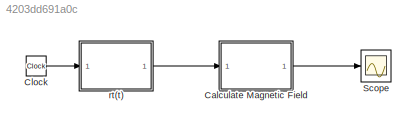
MODEL slx_4203dd691a0c
KIND model
CONFIG AbsTol = auto
CONFIG EnableMultiTasking = off
CONFIG FixedStep = auto
CONFIG MaxStep = auto
CONFIG MinStep = auto
CONFIG RelTol = 1e-3
CONFIG SampleTimeConstraint = Unconstrained
CONFIG SolverName = VariableStepAuto
CONFIG StartTime = 0.0
CONFIG StopTime = 5337.0
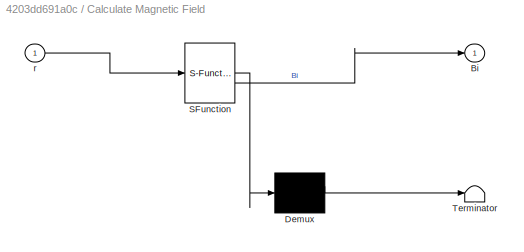
BLOCK [SubSystem] Calculate Magnetic Field
  ErrorFcn = Stateflow.Translate.translate
  LibrarySourceBlock = simulink/User-Defined\nFunctions/MATLAB Function
  PermitHierarchicalResolution = ExplicitOnly
  SFBlockType = MATLAB Function
  TreatAsAtomicUnit = on
BLOCK [Demux] Calculate Magnetic Field/ Demux 
  Outputs = 1
BLOCK [S-Function] Calculate Magnetic Field/ SFunction 
  EnableBusSupport = on
  FunctionName = sf_sfun
  PortCounts = [1 2]
  SFcnIsStateOwnerBlock = off
  SFunctionDeploymentMode = off
  Tag = Stateflow S-Function 1
BLOCK [Terminator] Calculate Magnetic Field/ Terminator 
BLOCK [Outport] Calculate Magnetic Field/Bi
BLOCK [Inport] Calculate Magnetic Field/r
BLOCK [Clock] Clock
BLOCK [Scope] Scope
  Floating = off
  NumInputPorts = 1
  ScopeSpecificationString = Simulink.scopes.TimeScopeBlockCfg('CurrentConfiguration', extmgr.ConfigurationSet(extmgr.Configuration('Core','General UI',true),extmgr.Configuration('Core','Source UI',true),extmgr.Configuration('Sources','WiredSimulink',true),extmgr.Configuration('Visuals','Time Domain',true,'SerializedDisplays',{struct('MinYLimReal','-0.00007','MaxYLimReal','0.00005','YLabelReal','','MinYLimMag','0.00000','MaxY...<+1402ch>
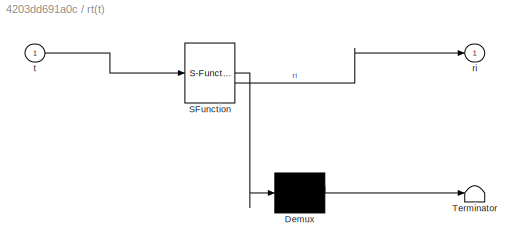
BLOCK [SubSystem] rt(t)
  ErrorFcn = Stateflow.Translate.translate
  LibrarySourceBlock = simulink/User-Defined\nFunctions/MATLAB Function
  PermitHierarchicalResolution = ExplicitOnly
  SFBlockType = MATLAB Function
  TreatAsAtomicUnit = on
BLOCK [Demux] rt(t)/ Demux 
  Outputs = 1
BLOCK [S-Function] rt(t)/ SFunction 
  EnableBusSupport = on
  FunctionName = sf_sfun
  PortCounts = [1 2]
  SFcnIsStateOwnerBlock = off
  SFunctionDeploymentMode = off
  Tag = Stateflow S-Function 2
BLOCK [Terminator] rt(t)/ Terminator 
BLOCK [Outport] rt(t)/ri
BLOCK [Inport] rt(t)/t
LINE Calculate Magnetic Field:1 -> Scope:1
LINE Clock:1 -> rt(t):1
LINE rt(t):1 -> Calculate Magnetic Field:1
CHART rt(t) states=1 transitions=1
  STATE_LABEL 'eML_blk_kernel()'
  STATE_LABEL 'SCRIPT:\nfunction ri = fcn(t)\n\np = 6600;\nmu = 398600;\nw = sqrt(mu / (p^3));\n\nri = (p/sqrt(2)) * [-cos(w*t); sqrt(2)*sin(w*t); cos(w*t)];\n\n'
CHART Calculate Magnetic Field states=1 transitions=1
  STATE_LABEL 'eML_blk_kernel()'
  STATE_LABEL "SCRIPT:\nfunction Bi = fcn(r)\n\nRe = 6378; % km\nB0 = 3.12e-5; % T\n\nnz = -r./norm(r);\nny = cross(nz, [0; 0; 1]) ./ norm(cross(nz, [0; 0; 1]));\nnx = cross(ny,nz);\nTi2n = [nx'; ny'; nz'];\n\nlat = acos(r(3)/norm(r));\n\nBn = (B0*(Re/norm(r))^3) * [cos(lat); 0; -2*sin(lat)];\n\nBi = Ti2n*Bn;\n\n"
CHART  states=0 transitions=0
CHART  states=0 transitions=0
